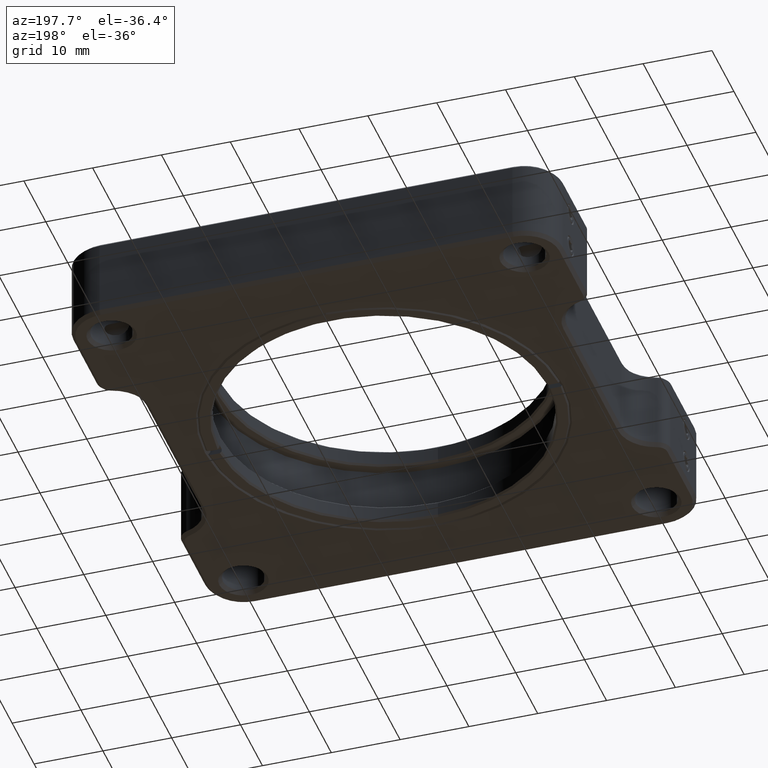
[diagram: clean part render]
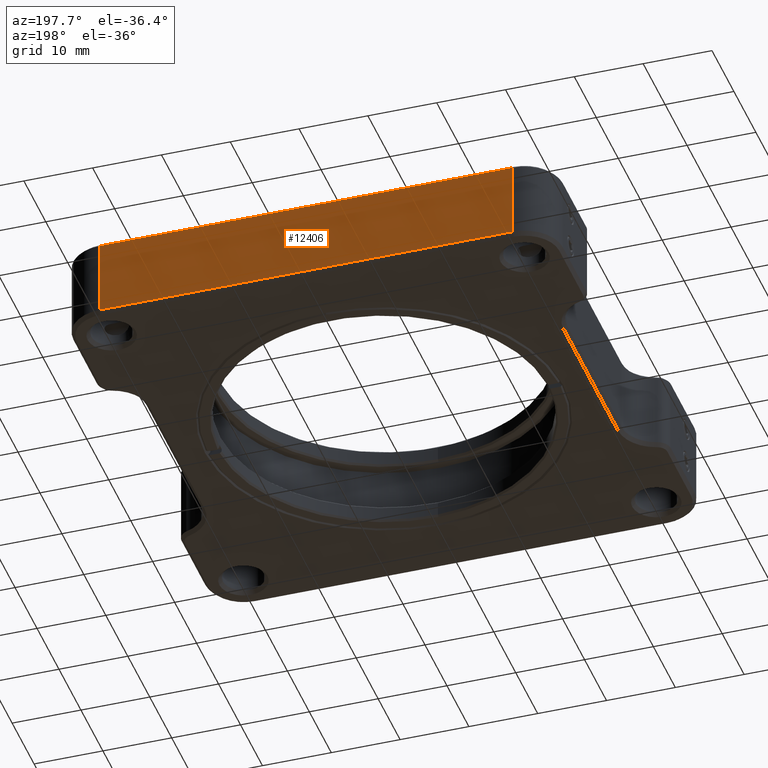
[diagram: same view with one face highlighted and labeled with its STEP entity id]
A machine part, auxiliary view. The second image highlights one B-rep face of the part: STEP entity #12406.
In plain terms, the highlighted planar face has unit normal (0, -1, 0).
Its self-contained STEP definition (entity closure, byte-faithful):
#431 = LINE ( 'NONE', #2946, #9637 ) ;
#486 = LINE ( 'NONE', #13001, #12874 ) ;
#540 = ORIENTED_EDGE ( 'NONE', *, *, #2467, .T. ) ;
#984 = ORIENTED_EDGE ( 'NONE', *, *, #4860, .T. ) ;
#1108 = CARTESIAN_POINT ( 'NONE',  ( 30.00000000000000000, 35.54999999999999005, 5.500000000000000000 ) ) ;
#2467 = EDGE_CURVE ( 'NONE', #2840, #5893, #431, .T. ) ;
#2840 = VERTEX_POINT ( 'NONE', #1108 ) ;
#2855 = CARTESIAN_POINT ( 'NONE',  ( 30.00000000000000000, 35.54999999999999005, -5.500000000000000000 ) ) ;
#2946 = CARTESIAN_POINT ( 'NONE',  ( 30.00000000000000000, 35.54999999999999005, 6.000000000000000000 ) ) ;
#3466 = PLANE ( 'NONE',  #10481 ) ;
#3521 = CARTESIAN_POINT ( 'NONE',  ( -35.54999999999999716, 35.54999999999999005, 6.000000000000000000 ) ) ;
#3588 = CARTESIAN_POINT ( 'NONE',  ( -30.00000000000000000, 35.54999999999999005, 5.500000000000000000 ) ) ;
#4125 = VECTOR ( 'NONE', #7440, 1000.000000000000000 ) ;
#4643 = CARTESIAN_POINT ( 'NONE',  ( -30.00000000000000000, 35.54999999999999005, -5.500000000000000000 ) ) ;
#4860 = EDGE_CURVE ( 'NONE', #5893, #7451, #6163, .T. ) ;
#5893 = VERTEX_POINT ( 'NONE', #2855 ) ;
#6163 = LINE ( 'NONE', #8381, #4125 ) ;
#6902 = DIRECTION ( 'NONE',  ( -0.000000000000000000, -0.000000000000000000, 1.000000000000000000 ) ) ;
#7029 = FACE_OUTER_BOUND ( 'NONE', #7952, .T. ) ;
#7290 = EDGE_CURVE ( 'NONE', #8018, #2840, #12566, .T. ) ;
#7440 = DIRECTION ( 'NONE',  ( -1.000000000000000000, 0.000000000000000000, 0.000000000000000000 ) ) ;
#7451 = VERTEX_POINT ( 'NONE', #4643 ) ;
#7906 = DIRECTION ( 'NONE',  ( 0.000000000000000000, 0.000000000000000000, -1.000000000000000000 ) ) ;
#7952 = EDGE_LOOP ( 'NONE', ( #11072, #12987, #540, #984 ) ) ;
#8018 = VERTEX_POINT ( 'NONE', #3588 ) ;
#8209 = EDGE_CURVE ( 'NONE', #7451, #8018, #486, .T. ) ;
#8381 = CARTESIAN_POINT ( 'NONE',  ( -35.54999999999999716, 35.54999999999999005, -5.500000000000000000 ) ) ;
#9206 = CARTESIAN_POINT ( 'NONE',  ( 30.00000000000000000, 35.54999999999999005, 5.500000000000000000 ) ) ;
#9637 = VECTOR ( 'NONE', #7906, 1000.000000000000000 ) ;
#9905 = VECTOR ( 'NONE', #12290, 1000.000000000000000 ) ;
#10401 = DIRECTION ( 'NONE',  ( 0.000000000000000000, -1.000000000000000000, 0.000000000000000000 ) ) ;
#10481 = AXIS2_PLACEMENT_3D ( 'NONE', #3521, #10401, #11428 ) ;
#11072 = ORIENTED_EDGE ( 'NONE', *, *, #8209, .T. ) ;
#11428 = DIRECTION ( 'NONE',  ( 0.000000000000000000, -0.000000000000000000, -1.000000000000000000 ) ) ;
#12290 = DIRECTION ( 'NONE',  ( 1.000000000000000000, 0.000000000000000000, 0.000000000000000000 ) ) ;
#12406 = ADVANCED_FACE ( 'NONE', ( #7029 ), #3466, .F. ) ;
#12566 = LINE ( 'NONE', #9206, #9905 ) ;
#12874 = VECTOR ( 'NONE', #6902, 1000.000000000000000 ) ;
#12987 = ORIENTED_EDGE ( 'NONE', *, *, #7290, .T. ) ;
#13001 = CARTESIAN_POINT ( 'NONE',  ( -30.00000000000000000, 35.54999999999999005, 6.000000000000000000 ) ) ;